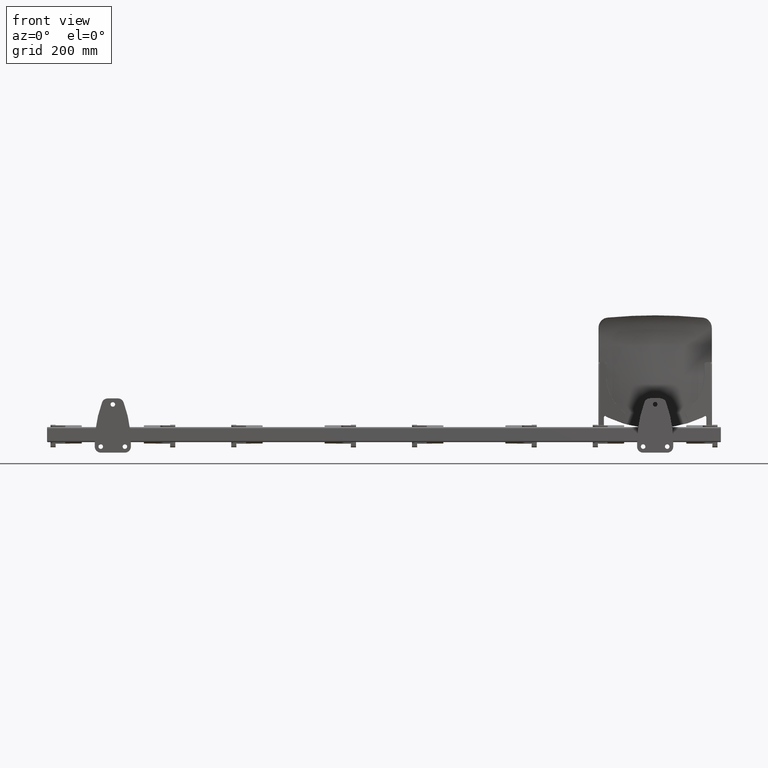
[diagram: clean part render]
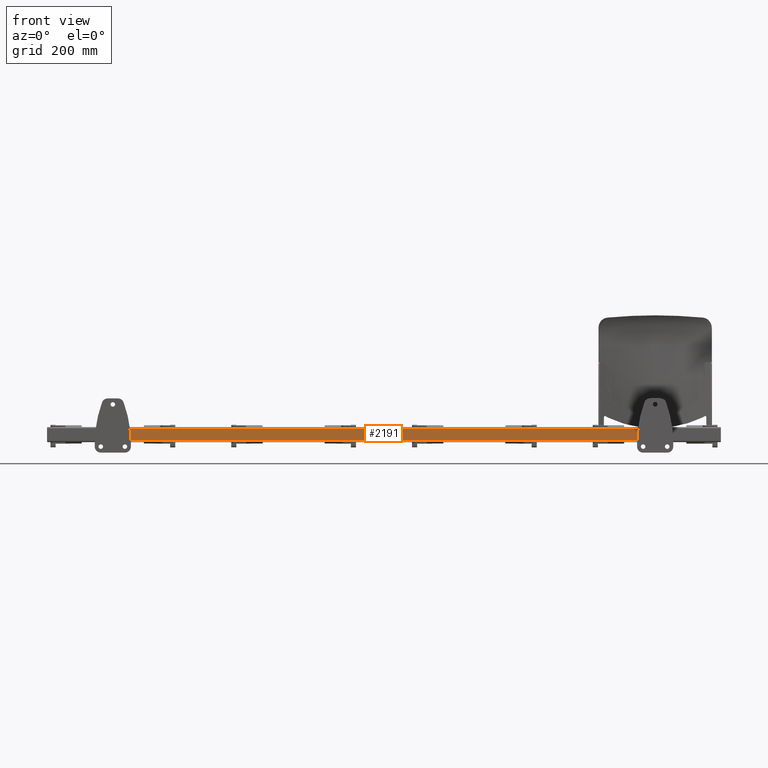
[diagram: same view with one face highlighted and labeled with its STEP entity id]
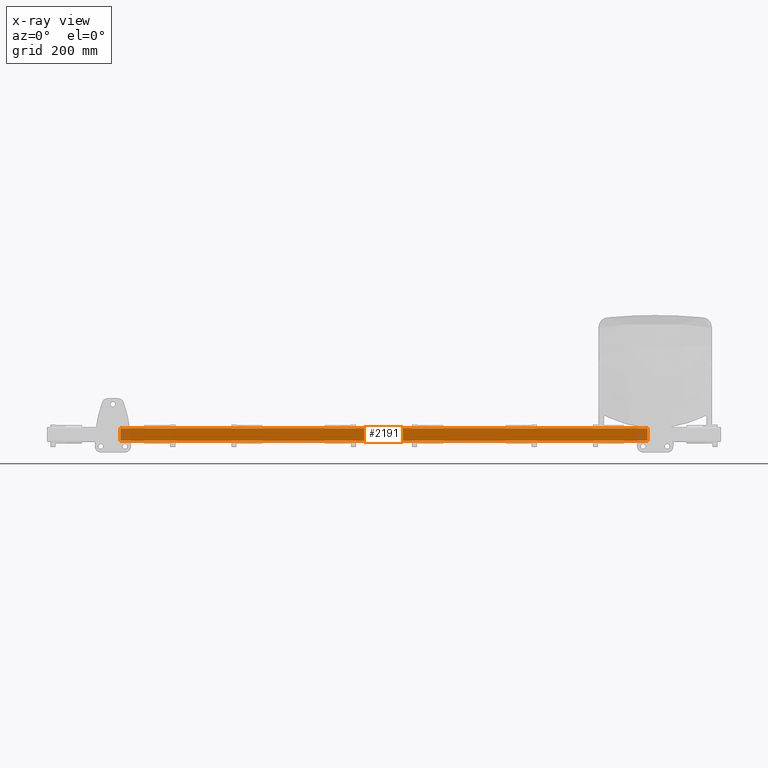
[diagram: x-ray of the same camera — body ghosted, the highlighted face saturated]
A machine part, front view. The second image highlights one B-rep face of the part: STEP entity #2191.
The next image is the same camera in x-ray: the body ghosted, the highlighted face saturated — about 4% of this face is hidden behind the body in this view.
In plain terms, the highlighted planar face has unit normal (0, 1, 0).
Its self-contained STEP definition (entity closure, byte-faithful):
#2191 = ADVANCED_FACE ( 'NONE', ( #3054 ), #12242, .F. ) ;
#2490 = LINE ( 'NONE', #14414, #2499 ) ;
#2499 = VECTOR ( 'NONE', #14425, 1000.000000000000000 ) ;
#2500 = LINE ( 'NONE', #14428, #2503 ) ;
#2502 = LINE ( 'NONE', #14430, #2505 ) ;
#2503 = VECTOR ( 'NONE', #14429, 1000.000000000000000 ) ;
#2504 = LINE ( 'NONE', #14432, #2507 ) ;
#2505 = VECTOR ( 'NONE', #14431, 1000.000000000000000 ) ;
#2507 = VECTOR ( 'NONE', #14433, 1000.000000000000000 ) ;
#3054 = FACE_OUTER_BOUND ( 'NONE', #11660, .T. ) ;
#5706 = VERTEX_POINT ( 'NONE', #6158 ) ;
#5715 = VERTEX_POINT ( 'NONE', #6175 ) ;
#5716 = VERTEX_POINT ( 'NONE', #6177 ) ;
#5723 = VERTEX_POINT ( 'NONE', #6190 ) ;
#6158 = CARTESIAN_POINT ( 'NONE',  ( 875.0000000000000000, 325.9999999999999400, 20.00000000000000000 ) ) ;
#6175 = CARTESIAN_POINT ( 'NONE',  ( -875.0000000000000000, 325.9999999999999400, 20.00000000000000000 ) ) ;
#6177 = CARTESIAN_POINT ( 'NONE',  ( 875.0000000000000000, 325.9999999999999400, -19.99999999999999600 ) ) ;
#6190 = CARTESIAN_POINT ( 'NONE',  ( -875.0000000000000000, 325.9999999999999400, -19.99999999999999600 ) ) ;
#11575 = ORIENTED_EDGE ( 'NONE', *, *, #16170, .T. ) ;
#11586 = ORIENTED_EDGE ( 'NONE', *, *, #16171, .F. ) ;
#11591 = ORIENTED_EDGE ( 'NONE', *, *, #16172, .T. ) ;
#11592 = ORIENTED_EDGE ( 'NONE', *, *, #16168, .T. ) ;
#11660 = EDGE_LOOP ( 'NONE', ( #11592, #11575, #11586, #11591 ) ) ;
#12242 = PLANE ( 'NONE',  #17005 ) ;
#12244 = CARTESIAN_POINT ( 'NONE',  ( -875.0000000000000000, 325.9999999999999400, 25.00000000000000000 ) ) ;
#12249 = DIRECTION ( 'NONE',  ( 0.0000000000000000000, 1.000000000000000000, 0.0000000000000000000 ) ) ;
#12250 = DIRECTION ( 'NONE',  ( 0.0000000000000000000, -0.0000000000000000000, 1.000000000000000000 ) ) ;
#14414 = CARTESIAN_POINT ( 'NONE',  ( -875.0000000000000000, 325.9999999999999400, 25.00000000000000000 ) ) ;
#14425 = DIRECTION ( 'NONE',  ( -0.0000000000000000000, -0.0000000000000000000, -1.000000000000000000 ) ) ;
#14428 = CARTESIAN_POINT ( 'NONE',  ( 875.0000000000000000, 325.9999999999999400, -19.99999999999999600 ) ) ;
#14429 = DIRECTION ( 'NONE',  ( 1.000000000000000000, 0.0000000000000000000, 0.0000000000000000000 ) ) ;
#14430 = CARTESIAN_POINT ( 'NONE',  ( 875.0000000000000000, 325.9999999999999400, 25.00000000000000000 ) ) ;
#14431 = DIRECTION ( 'NONE',  ( -0.0000000000000000000, -0.0000000000000000000, -1.000000000000000000 ) ) ;
#14432 = CARTESIAN_POINT ( 'NONE',  ( -875.0000000000000000, 325.9999999999999400, 20.00000000000000000 ) ) ;
#14433 = DIRECTION ( 'NONE',  ( -1.000000000000000000, -0.0000000000000000000, -0.0000000000000000000 ) ) ;
#16168 = EDGE_CURVE ( 'NONE', #5715, #5723, #2490, .T. ) ;
#16170 = EDGE_CURVE ( 'NONE', #5723, #5716, #2500, .T. ) ;
#16171 = EDGE_CURVE ( 'NONE', #5706, #5716, #2502, .T. ) ;
#16172 = EDGE_CURVE ( 'NONE', #5706, #5715, #2504, .T. ) ;
#17005 = AXIS2_PLACEMENT_3D ( 'NONE', #12244, #12249, #12250 ) ;